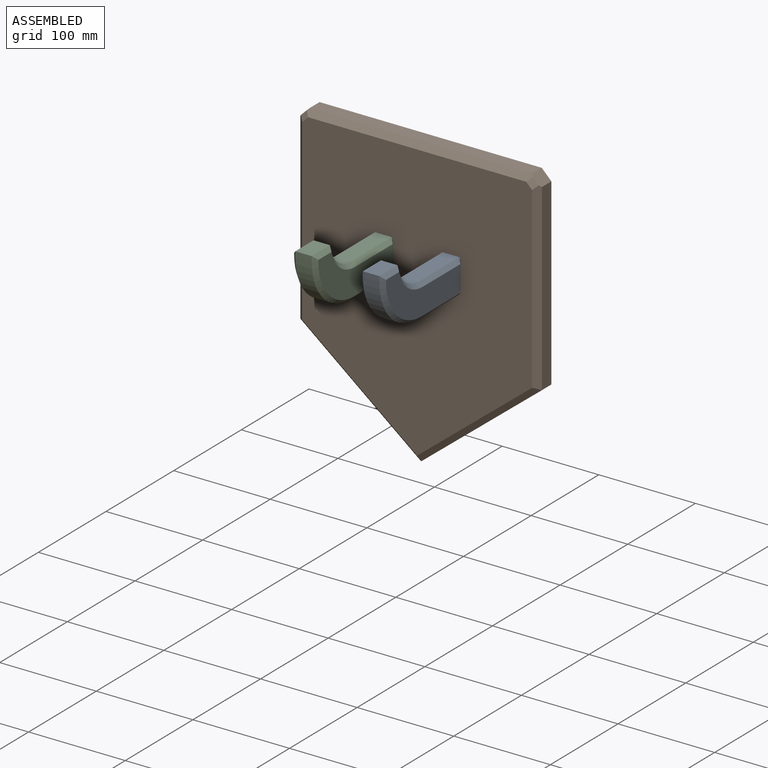
[diagram: assembled view]
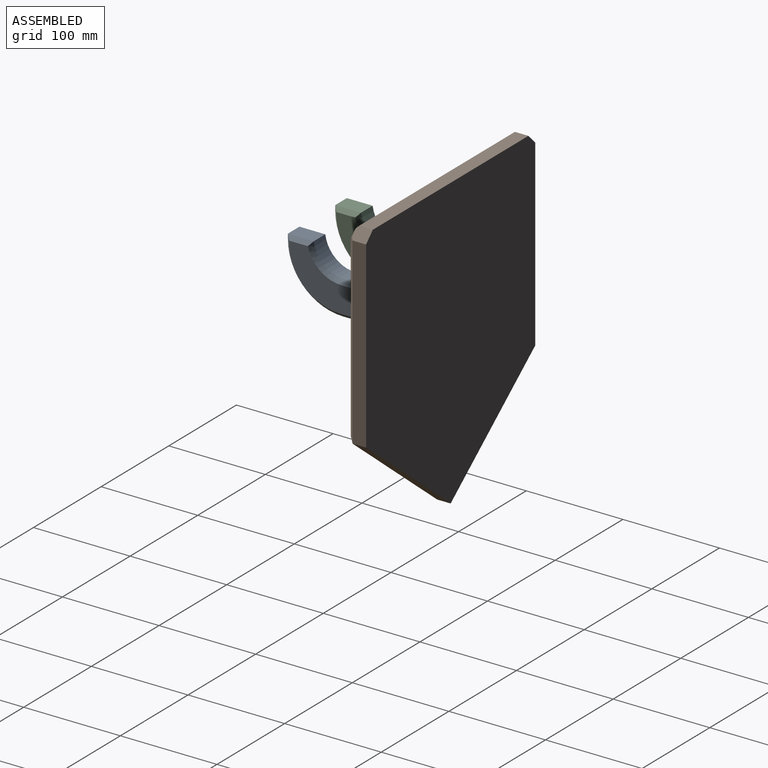
[diagram: assembled view, second angle]
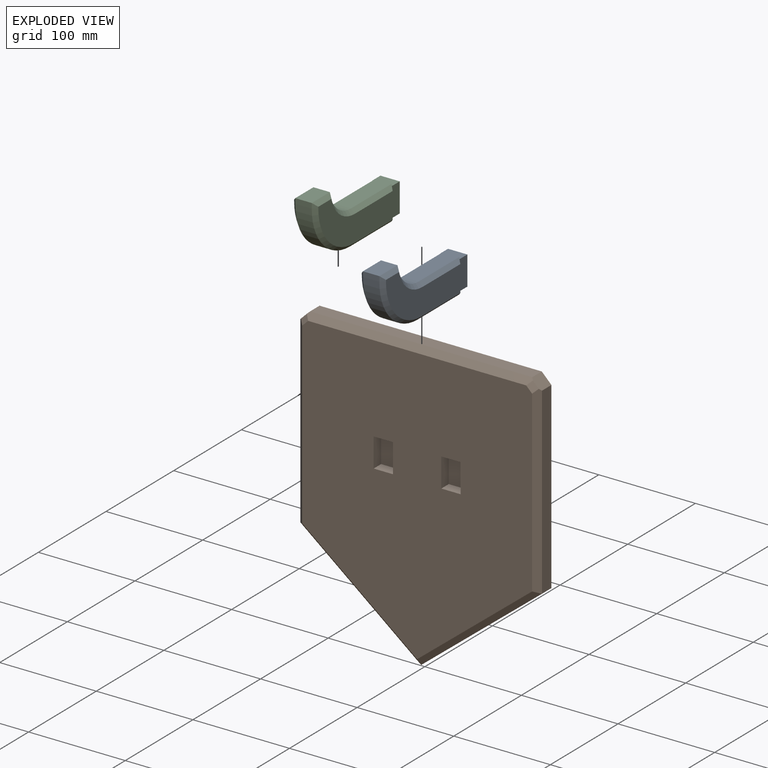
[diagram: exploded view]
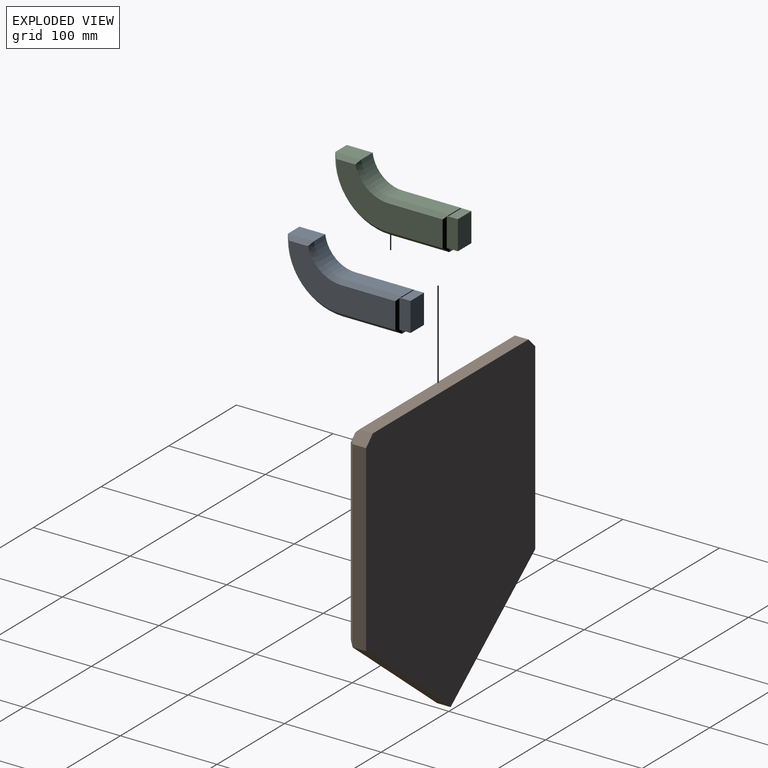
[diagram: exploded view, second angle]
ASSEMBLY  parts=3 mates=2
PART A: 33 faces, bbox 25x127.9x62.2 mm
  f0: plane 0.5x0.5mm, normal (-0.71,-0.71,0), area 0.2mm2, adj f8,f18,f31
  f1: plane 1x1mm, normal (0.71,0.71,0), area 0.7mm2, adj f8,f16,f31
  f2: plane 0.5x0.5mm, normal (0.71,-0.71,0), area 0.2mm2, adj f8,f17,f24
  f3: plane 1x1mm, normal (-0.71,0.71,0), area 0.7mm2, adj f8,f16,f24
  f4: plane 17x4mm, normal (0,1,0), area 68mm2, adj f7,f15,f25,f32
  f5: plane 109.94x54.21mm, normal (1,0,0), area 3137.1mm2, adj f26,f27,f28,f29,f30,f31,f32
  f6: plane 109.94x54.21mm, normal (-1,0,0), area 3137.1mm2, adj f19,f20,f21,f22,f23,f24,f25
  f7: plane 20x11.5mm, normal (0,0,-1), area 202.3mm2, adj f4,f9,f17,f18,f25,f32
  f8: plane 20x11.5mm, normal (0,0,1), area 202.2mm2, adj f0,f1,f2,f3,f9,f16,f17,f18
  f9: plane 30x20mm, normal (0,1,0), area 600mm2, adj f7,f8,f17,f18
  f10: plane 60x17mm, normal (0,0,1), area 1020mm2, adj f11,f16,f24,f31
  f11: cylinder r=31.49mm len=31.2mm, axis (-1,0,0), area 767.9mm2, adj f10,f12,f22,f29
  f12: plane 26.74x17mm, normal (0,0,1), area 454.6mm2, adj f11,f13,f20,f27
  f13: plane 17x5.29mm, normal (0,-1,0), area 89.9mm2, adj f12,f14,f19,f26
  f14: cylinder r=56.92mm len=56.92mm, axis (-1,0,0), area 1520mm2, adj f13,f15,f21,f28
  f15: plane 61.02x17mm, normal (0,0,-1), area 1037.4mm2, adj f4,f14,f23,f30
  f16: plane 17x1mm, normal (0,1,0), area 17mm2, adj f1,f3,f8,f10
  f17: plane 30x11.5mm, normal (-1,0,0), area 345mm2, adj f2,f7,f8,f9,f25
  f18: plane 30x11.5mm, normal (1,0,0), area 345mm2, adj f0,f7,f8,f9,f32
  f19: plane 5.29x4mm, normal (-0.71,-0.71,0), area 18.6mm2, adj f6,f13,f20,f21
  f20: plane 26.74x4mm, normal (-0.71,0,0.71), area 130.4mm2, adj f6,f12,f19,f22
  f21: cone r=56.92mm half-angle=45deg, axis (1,0,0), area 488mm2, adj f6,f14,f19,f23
  f22: cone r=31.49mm half-angle=45deg, axis (-1,0,0), area 261.8mm2, adj f6,f11,f20,f24
  f23: plane 61.02x4mm, normal (-0.71,0,-0.71), area 333.9mm2, adj f6,f15,f21,f25
  f24: plane 60x4mm, normal (-0.71,0,0.71), area 328.1mm2, adj f2,f3,f6,f10,f22,f25
  f25: plane 33.5x4mm, normal (-0.71,0.71,0), area 111.2mm2, adj f4,f6,f7,f17,f23,f24
  f26: plane 5.29x4mm, normal (0.71,-0.71,0), area 18.6mm2, adj f5,f13,f27,f28
  f27: plane 26.74x4mm, normal (0.71,0,0.71), area 130.4mm2, adj f5,f12,f26,f29
  f28: cone r=52.92mm half-angle=45deg, axis (-1,0,0), area 488mm2, adj f5,f14,f26,f30
  f29: cone r=35.49mm half-angle=45deg, axis (1,0,0), area 261.8mm2, adj f5,f11,f27,f31
  f30: plane 61.02x4mm, normal (0.71,0,-0.71), area 333.9mm2, adj f5,f15,f28,f32
  f31: plane 60x4mm, normal (0.71,0,0.71), area 328.1mm2, adj f0,f1,f5,f10,f29,f32
  f32: plane 33.5x4mm, normal (0.71,0.71,0), area 111.2mm2, adj f4,f5,f7,f18,f30,f31
PART B: 26 faces, bbox 250x20x300 mm
  f0: plane 286.32x238mm, normal (0,-1,0), area 55577mm2, adj f7,f8,f9,f10,f11,f12,f13,f14
  f1: plane 230x14mm, normal (0,0,1), area 3220mm2, adj f6,f7,f22,f23
  f2: plane 190x14mm, normal (-1,0,0), area 2660mm2, adj f3,f6,f8,f22
  f3: plane 125x100mm, normal (-0.62,0,-0.78), area 2241.1mm2, adj f2,f4,f6,f10
  f4: plane 125x100mm, normal (0.62,0,-0.78), area 2241.1mm2, adj f3,f5,f6,f11
  f5: plane 190x14mm, normal (1,0,0), area 2660mm2, adj f4,f6,f9,f23
  f6: plane 300x250mm, normal (0,1,0), area 62400mm2, adj f1,f2,f3,f4,f5,f22,f23
  f7: plane 233.88x6mm, normal (0,-0.71,0.71), area 1955.9mm2, adj f0,f1,f22,f23,f24,f25
  f8: plane 191.94x6mm, normal (-0.71,-0.71,0), area 1602.1mm2, adj f0,f2,f10,f22,f24
  f9: plane 191.94x6mm, normal (0.71,-0.71,0), area 1602.1mm2, adj f0,f5,f11,f23,f25
  f10: plane 125x102.88mm, normal (-0.44,-0.71,-0.55), area 1325.7mm2, adj f0,f3,f8,f11
  f11: plane 125x102.88mm, normal (0.44,-0.71,-0.55), area 1325.7mm2, adj f0,f4,f9,f10
  f12: plane 20x11mm, normal (0,0,-1), area 220mm2, adj f0,f13,f15,f16
  f13: plane 30x11mm, normal (1,0,0), area 330mm2, adj f0,f12,f14,f16
  f14: plane 20x11mm, normal (0,0,1), area 220mm2, adj f0,f13,f15,f16
  f15: plane 30x11mm, normal (-1,0,0), area 330mm2, adj f0,f12,f14,f16
  f16: plane 30x20mm, normal (0,-1,0), area 600mm2, adj f12,f13,f14,f15
  f17: plane 20x11mm, normal (0,0,-1), area 220mm2, adj f0,f18,f20,f21
  f18: plane 30x11mm, normal (1,0,0), area 330mm2, adj f0,f17,f19,f21
  f19: plane 20x11mm, normal (0,0,1), area 220mm2, adj f0,f18,f20,f21
  f20: plane 30x11mm, normal (-1,0,0), area 330mm2, adj f0,f17,f19,f21
  f21: plane 30x20mm, normal (0,-1,0), area 600mm2, adj f17,f18,f19,f20
  f22: plane 15.94x10mm, normal (-0.71,0,0.71), area 220.1mm2, adj f1,f2,f6,f7,f8,f24
  f23: plane 15.94x10mm, normal (0.71,0,0.71), area 220.1mm2, adj f1,f5,f6,f7,f9,f25
  f24: plane 10.19x10.19mm, normal (-0.41,-0.82,0.41), area 60.9mm2, adj f0,f7,f8,f22
  f25: plane 10.19x10.19mm, normal (0.41,-0.82,0.41), area 60.9mm2, adj f0,f7,f9,f23
PART C: same geometry as A
PLACE A t=(25.71,53.14,158.39)mm
PLACE B t=(-127.02,104.11,-11.61)mm
PLACE C t=(-44.29,53.14,158.39)mm
MATE slider C.f8 <-> B.f17  axis (0,0,1) through (-31.79,84.11,192.39)mm
MATE slider A.f8 <-> B.f12  axis (0,0,1) through (38.21,84.11,192.39)mm
